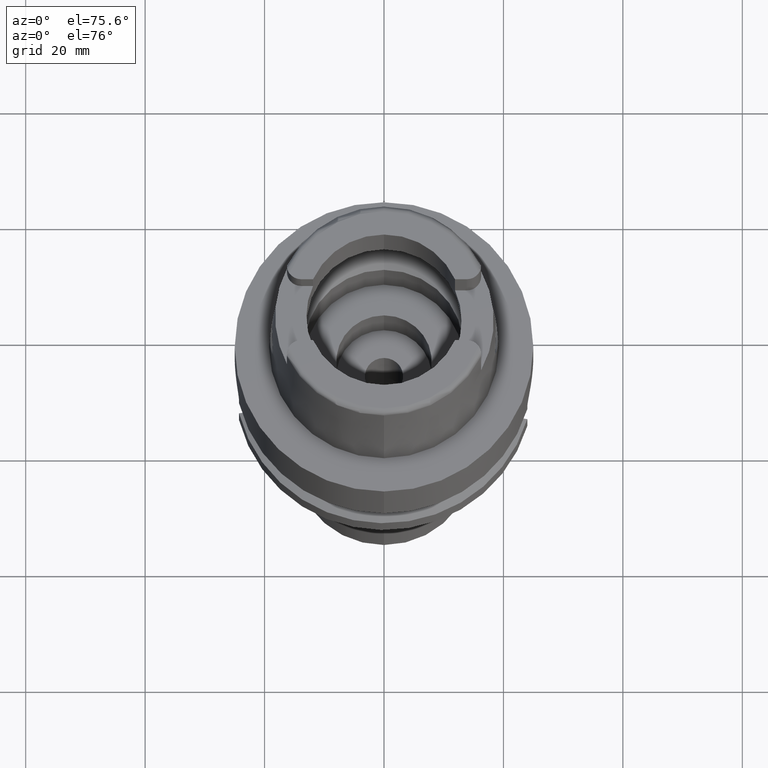
[diagram: clean part render]
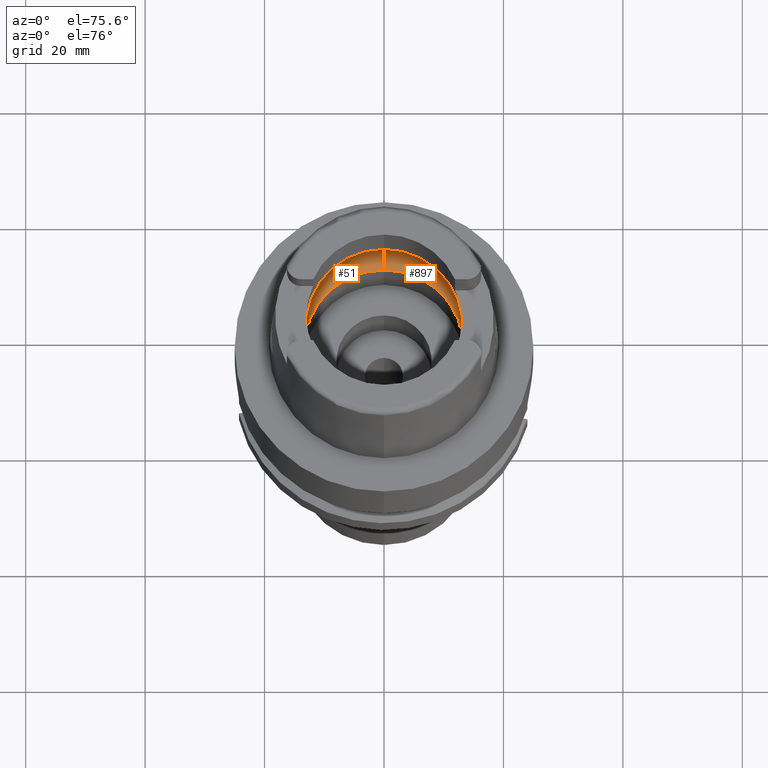
[diagram: same view with one multi-face feature highlighted, each face labeled with its STEP entity id]
A machine part, auxiliary view. The highlighted faces form ONE feature: a constant-radius fillet chain: 2 tangent blend faces with common blend radius 6 mm. The faces share edges in the B-rep.
Their STEP definitions:
[1] entity #897 (Torus):
#36 = ORIENTED_EDGE ( 'NONE', *, *, #2970, .F. ) ;
#290 = AXIS2_PLACEMENT_3D ( 'NONE', #2500, #4573, #1977 ) ;
#303 = CARTESIAN_POINT ( 'NONE',  ( 0.0000000000000000000, -13.29999999999999893, 0.04999999999997999794 ) ) ;
#313 = CIRCLE ( 'NONE', #1535, 16.00000000000000000 ) ;
#335 = CARTESIAN_POINT ( 'NONE',  ( 15.92748130313666266, -1.536287252994779751, 4.910241166276443359 ) ) ;
#595 = CARTESIAN_POINT ( 'NONE',  ( 0.0000000000000000000, 0.0000000000000000000, 0.04999999999997999794 ) ) ;
#610 = ORIENTED_EDGE ( 'NONE', *, *, #1563, .F. ) ;
#622 = DIRECTION ( 'NONE',  ( 0.0000000000000000000, 0.0000000000000000000, 1.000000000000000000 ) ) ;
#721 = CARTESIAN_POINT ( 'NONE',  ( 15.94481961884416599, -1.284363903411000596, 4.771085202065872721 ) ) ;
#742 = CARTESIAN_POINT ( 'NONE',  ( 0.0000000000000000000, 16.00000000000000000, 5.060987926546999915 ) ) ;
#870 = DIRECTION ( 'NONE',  ( 0.0000000000000000000, 0.5500000000000007105, -0.8351646544245028281 ) ) ;
#897 = ADVANCED_FACE ( 'NONE', ( #2250 ), #2442, .F. ) ;
#965 = DIRECTION ( 'NONE',  ( 0.0000000000000000000, 1.000000000000000000, 0.0000000000000000000 ) ) ;
#991 = DIRECTION ( 'NONE',  ( 0.0000000000000000000, 0.0000000000000000000, 1.000000000000000000 ) ) ;
#1132 = CARTESIAN_POINT ( 'NONE',  ( 15.96793737312083472, -0.6977532816171033714, 4.565769782590064274 ) ) ;
#1307 = ORIENTED_EDGE ( 'NONE', *, *, #4589, .T. ) ;
#1386 = AXIS2_PLACEMENT_3D ( 'NONE', #4032, #991, #965 ) ;
#1535 = AXIS2_PLACEMENT_3D ( 'NONE', #5390, #4439, #4089 ) ;
#1563 = EDGE_CURVE ( 'NONE', #4594, #4407, #5110, .T. ) ;
#1608 = CARTESIAN_POINT ( 'NONE',  ( 15.97371681168999835, 0.0000000000000000000, 4.500000000000000000 ) ) ;
#1665 = DIRECTION ( 'NONE',  ( 1.000000000000000000, 0.0000000000000000000, 0.0000000000000000000 ) ) ;
#1754 = VERTEX_POINT ( 'NONE', #4991 ) ;
#1841 = ORIENTED_EDGE ( 'NONE', *, *, #3858, .F. ) ;
#1977 = DIRECTION ( 'NONE',  ( 0.0000000000000000000, -0.5500000000000007105, -0.8351646544245028281 ) ) ;
#2149 = CIRCLE ( 'NONE', #3671, 5.999999999999993783 ) ;
#2250 = FACE_OUTER_BOUND ( 'NONE', #4171, .T. ) ;
#2281 = ORIENTED_EDGE ( 'NONE', *, *, #2534, .F. ) ;
#2290 = DIRECTION ( 'NONE',  ( 0.0000000000000000000, -1.000000000000000000, 0.0000000000000000000 ) ) ;
#2350 = AXIS2_PLACEMENT_3D ( 'NONE', #595, #622, #2290 ) ;
#2393 = CARTESIAN_POINT ( 'NONE',  ( 15.90436354886000103, -1.746774199932999982, 5.060987926546999915 ) ) ;
#2442 = TOROIDAL_SURFACE ( 'NONE', #1386, 10.00000000000000000, 6.000000000000000000 ) ;
#2500 = CARTESIAN_POINT ( 'NONE',  ( 0.0000000000000000000, -10.00000000000000000, 5.060987926546999915 ) ) ;
#2534 = EDGE_CURVE ( 'NONE', #4974, #1754, #3941, .T. ) ;
#2558 = DIRECTION ( 'NONE',  ( 0.0000000000000000000, 0.0000000000000000000, -1.000000000000000000 ) ) ;
#2613 = B_SPLINE_CURVE_WITH_KNOTS ( 'NONE', 3,
 ( #3669, #5359, #4053, #2879, #2905, #5025 ),
 .UNSPECIFIED., .F., .F.,
 ( 4, 2, 4 ),
 ( 0.0000000000000000000, 0.5000000000000000000, 1.000000000000000000 ),
 .UNSPECIFIED. ) ;
#2811 = EDGE_CURVE ( 'NONE', #4380, #4974, #2613, .T. ) ;
#2867 = ORIENTED_EDGE ( 'NONE', *, *, #2811, .F. ) ;
#2879 = CARTESIAN_POINT ( 'NONE',  ( 15.96793737312082406, 0.6977532815764533325, 4.565769782580398228 ) ) ;
#2905 = CARTESIAN_POINT ( 'NONE',  ( 15.97371681168999835, 0.3626031211644606955, 4.500000000000000888 ) ) ;
#2970 = EDGE_CURVE ( 'NONE', #4407, #3973, #2149, .T. ) ;
#3233 = CARTESIAN_POINT ( 'NONE',  ( 15.97371681168999835, 0.0000000000000000000, 4.500000000000000000 ) ) ;
#3403 = CARTESIAN_POINT ( 'NONE',  ( 0.0000000000000000000, 13.29999999999999893, 0.04999999999997999794 ) ) ;
#3669 = CARTESIAN_POINT ( 'NONE',  ( 15.90436354886000103, 1.746774199932999982, 5.060987926546999915 ) ) ;
#3671 = AXIS2_PLACEMENT_3D ( 'NONE', #5467, #1665, #870 ) ;
#3858 = EDGE_CURVE ( 'NONE', #3973, #4380, #313, .T. ) ;
#3870 = CARTESIAN_POINT ( 'NONE',  ( 0.0000000000000000000, 0.0000000000000000000, 5.060987926546999915 ) ) ;
#3941 = B_SPLINE_CURVE_WITH_KNOTS ( 'NONE', 3,
 ( #3233, #4932, #1132, #721, #335, #2393 ),
 .UNSPECIFIED., .F., .F.,
 ( 4, 2, 4 ),
 ( 0.0000000000000000000, 0.5000000000000000000, 1.000000000000000000 ),
 .UNSPECIFIED. ) ;
#3973 = VERTEX_POINT ( 'NONE', #742 ) ;
#4032 = CARTESIAN_POINT ( 'NONE',  ( 0.0000000000000000000, 0.0000000000000000000, 5.060987926546999915 ) ) ;
#4053 = CARTESIAN_POINT ( 'NONE',  ( 15.94481961884416954, 1.284363903373195281, 4.771085202048084284 ) ) ;
#4082 = CIRCLE ( 'NONE', #290, 5.999999999999993783 ) ;
#4089 = DIRECTION ( 'NONE',  ( 0.0000000000000000000, 1.000000000000000000, 0.0000000000000000000 ) ) ;
#4171 = EDGE_LOOP ( 'NONE', ( #2867, #1841, #36, #610, #1307, #5173, #2281 ) ) ;
#4350 = CARTESIAN_POINT ( 'NONE',  ( 15.90436354886000103, 1.746774199932999982, 5.060987926546999915 ) ) ;
#4379 = CIRCLE ( 'NONE', #5076, 16.00000000000000355 ) ;
#4380 = VERTEX_POINT ( 'NONE', #4350 ) ;
#4407 = VERTEX_POINT ( 'NONE', #3403 ) ;
#4439 = DIRECTION ( 'NONE',  ( 0.0000000000000000000, 0.0000000000000000000, -1.000000000000000000 ) ) ;
#4453 = EDGE_CURVE ( 'NONE', #1754, #4930, #4379, .T. ) ;
#4573 = DIRECTION ( 'NONE',  ( -1.000000000000000000, 0.0000000000000000000, 0.0000000000000000000 ) ) ;
#4589 = EDGE_CURVE ( 'NONE', #4594, #4930, #4082, .T. ) ;
#4594 = VERTEX_POINT ( 'NONE', #303 ) ;
#4930 = VERTEX_POINT ( 'NONE', #5361 ) ;
#4932 = CARTESIAN_POINT ( 'NONE',  ( 15.97371681169000190, -0.3626031211921638686, 4.500000000000000000 ) ) ;
#4974 = VERTEX_POINT ( 'NONE', #1608 ) ;
#4991 = CARTESIAN_POINT ( 'NONE',  ( 15.90436354886000103, -1.746774199932999982, 5.060987926546999915 ) ) ;
#5025 = CARTESIAN_POINT ( 'NONE',  ( 15.97371681168999835, 0.0000000000000000000, 4.500000000000000000 ) ) ;
#5076 = AXIS2_PLACEMENT_3D ( 'NONE', #3870, #2558, #5128 ) ;
#5110 = CIRCLE ( 'NONE', #2350, 13.29999999999999893 ) ;
#5128 = DIRECTION ( 'NONE',  ( 0.9940227218040297297, -0.1091733874958031730, 0.0000000000000000000 ) ) ;
#5173 = ORIENTED_EDGE ( 'NONE', *, *, #4453, .F. ) ;
#5359 = CARTESIAN_POINT ( 'NONE',  ( 15.92748130313666266, 1.536287252972255990, 4.910241166260312262 ) ) ;
#5361 = CARTESIAN_POINT ( 'NONE',  ( 0.0000000000000000000, -16.00000000000000000, 5.060987926546999915 ) ) ;
#5390 = CARTESIAN_POINT ( 'NONE',  ( 0.0000000000000000000, 0.0000000000000000000, 5.060987926546999915 ) ) ;
#5467 = CARTESIAN_POINT ( 'NONE',  ( 0.0000000000000000000, 10.00000000000000000, 5.060987926546999915 ) ) ;
[2] entity #51 (Torus):
#51 = ADVANCED_FACE ( 'NONE', ( #436 ), #868, .F. ) ;
#146 = AXIS2_PLACEMENT_3D ( 'NONE', #1683, #1164, #1270 ) ;
#224 = DIRECTION ( 'NONE',  ( 0.0000000000000000000, -1.000000000000000000, 0.0000000000000000000 ) ) ;
#246 = CARTESIAN_POINT ( 'NONE',  ( -15.90436354886000103, 1.746774199932999982, 5.060987926546999915 ) ) ;
#281 = CARTESIAN_POINT ( 'NONE',  ( -15.97371681168999835, -0.3626031211644242247, 4.499999999999999112 ) ) ;
#290 = AXIS2_PLACEMENT_3D ( 'NONE', #2500, #4573, #1977 ) ;
#303 = CARTESIAN_POINT ( 'NONE',  ( 0.0000000000000000000, -13.29999999999999893, 0.04999999999997999794 ) ) ;
#316 = CARTESIAN_POINT ( 'NONE',  ( -15.97371681168999835, 0.0000000000000000000, 4.500000000000000000 ) ) ;
#346 = CARTESIAN_POINT ( 'NONE',  ( 0.0000000000000000000, 0.0000000000000000000, 5.060987926546999915 ) ) ;
#350 = EDGE_CURVE ( 'NONE', #4407, #4594, #4408, .T. ) ;
#436 = FACE_OUTER_BOUND ( 'NONE', #4705, .T. ) ;
#556 = EDGE_CURVE ( 'NONE', #998, #2078, #3346, .T. ) ;
#572 = AXIS2_PLACEMENT_3D ( 'NONE', #2765, #1927, #224 ) ;
#700 = CARTESIAN_POINT ( 'NONE',  ( -15.90436354886000103, -1.746774199932999982, 5.060987926546999915 ) ) ;
#742 = CARTESIAN_POINT ( 'NONE',  ( 0.0000000000000000000, 16.00000000000000000, 5.060987926546999915 ) ) ;
#868 = TOROIDAL_SURFACE ( 'NONE', #1658, 10.00000000000000000, 6.000000000000000000 ) ;
#870 = DIRECTION ( 'NONE',  ( 0.0000000000000000000, 0.5500000000000007105, -0.8351646544245028281 ) ) ;
#871 = DIRECTION ( 'NONE',  ( 0.0000000000000000000, 0.0000000000000000000, 1.000000000000000000 ) ) ;
#908 = ORIENTED_EDGE ( 'NONE', *, *, #3356, .F. ) ;
#998 = VERTEX_POINT ( 'NONE', #1398 ) ;
#1098 = CIRCLE ( 'NONE', #572, 16.00000000000000000 ) ;
#1164 = DIRECTION ( 'NONE',  ( 0.0000000000000000000, 0.0000000000000000000, 1.000000000000000000 ) ) ;
#1203 = CARTESIAN_POINT ( 'NONE',  ( -15.92748130313666799, -1.536287252972227124, 4.910241166260291834 ) ) ;
#1270 = DIRECTION ( 'NONE',  ( 0.0000000000000000000, 1.000000000000000000, 0.0000000000000000000 ) ) ;
#1398 = CARTESIAN_POINT ( 'NONE',  ( -15.90436354886000103, -1.746774199932999982, 5.060987926546999915 ) ) ;
#1417 = ORIENTED_EDGE ( 'NONE', *, *, #4589, .F. ) ;
#1478 = ORIENTED_EDGE ( 'NONE', *, *, #2970, .T. ) ;
#1500 = EDGE_CURVE ( 'NONE', #3985, #3973, #2267, .T. ) ;
#1658 = AXIS2_PLACEMENT_3D ( 'NONE', #5026, #871, #3360 ) ;
#1665 = DIRECTION ( 'NONE',  ( 1.000000000000000000, 0.0000000000000000000, 0.0000000000000000000 ) ) ;
#1683 = CARTESIAN_POINT ( 'NONE',  ( 0.0000000000000000000, 0.0000000000000000000, 0.04999999999997999794 ) ) ;
#1744 = ORIENTED_EDGE ( 'NONE', *, *, #1500, .F. ) ;
#1927 = DIRECTION ( 'NONE',  ( 0.0000000000000000000, 0.0000000000000000000, -1.000000000000000000 ) ) ;
#1977 = DIRECTION ( 'NONE',  ( 0.0000000000000000000, -0.5500000000000007105, -0.8351646544245028281 ) ) ;
#1987 = CARTESIAN_POINT ( 'NONE',  ( -15.94481961884416599, 1.284363903331934509, 4.771085202028663375 ) ) ;
#2015 = DIRECTION ( 'NONE',  ( 0.0000000000000000000, 0.0000000000000000000, -1.000000000000000000 ) ) ;
#2078 = VERTEX_POINT ( 'NONE', #2163 ) ;
#2148 = B_SPLINE_CURVE_WITH_KNOTS ( 'NONE', 3,
 ( #316, #3240, #4914, #1987, #4530, #2800 ),
 .UNSPECIFIED., .F., .F.,
 ( 4, 2, 4 ),
 ( 0.0000000000000000000, 0.5000000000000000000, 1.000000000000000000 ),
 .UNSPECIFIED. ) ;
#2149 = CIRCLE ( 'NONE', #3671, 5.999999999999993783 ) ;
#2163 = CARTESIAN_POINT ( 'NONE',  ( -15.97371681168999835, 0.0000000000000000000, 4.500000000000000000 ) ) ;
#2267 = CIRCLE ( 'NONE', #4410, 16.00000000000000355 ) ;
#2306 = ORIENTED_EDGE ( 'NONE', *, *, #350, .F. ) ;
#2500 = CARTESIAN_POINT ( 'NONE',  ( 0.0000000000000000000, -10.00000000000000000, 5.060987926546999915 ) ) ;
#2517 = ORIENTED_EDGE ( 'NONE', *, *, #556, .F. ) ;
#2765 = CARTESIAN_POINT ( 'NONE',  ( 0.0000000000000000000, 0.0000000000000000000, 5.060987926546999915 ) ) ;
#2800 = CARTESIAN_POINT ( 'NONE',  ( -15.90436354886000103, 1.746774199932999982, 5.060987926546999915 ) ) ;
#2970 = EDGE_CURVE ( 'NONE', #4407, #3973, #2149, .T. ) ;
#3115 = EDGE_CURVE ( 'NONE', #2078, #3985, #2148, .T. ) ;
#3187 = ORIENTED_EDGE ( 'NONE', *, *, #3115, .F. ) ;
#3240 = CARTESIAN_POINT ( 'NONE',  ( -15.97371681168999835, 0.3626031211342209404, 4.500000000000000000 ) ) ;
#3346 = B_SPLINE_CURVE_WITH_KNOTS ( 'NONE', 3,
 ( #700, #1203, #4044, #4070, #281, #4473 ),
 .UNSPECIFIED., .F., .F.,
 ( 4, 2, 4 ),
 ( 0.0000000000000000000, 0.5000000000000000000, 1.000000000000000000 ),
 .UNSPECIFIED. ) ;
#3356 = EDGE_CURVE ( 'NONE', #4930, #998, #1098, .T. ) ;
#3360 = DIRECTION ( 'NONE',  ( 0.0000000000000000000, 1.000000000000000000, 0.0000000000000000000 ) ) ;
#3403 = CARTESIAN_POINT ( 'NONE',  ( 0.0000000000000000000, 13.29999999999999893, 0.04999999999997999794 ) ) ;
#3671 = AXIS2_PLACEMENT_3D ( 'NONE', #5467, #1665, #870 ) ;
#3717 = DIRECTION ( 'NONE',  ( -0.9940227218040297297, 0.1091733874958031730, 0.0000000000000000000 ) ) ;
#3973 = VERTEX_POINT ( 'NONE', #742 ) ;
#3985 = VERTEX_POINT ( 'NONE', #246 ) ;
#4044 = CARTESIAN_POINT ( 'NONE',  ( -15.94481961884416954, -1.284363903373151983, 4.771085202048062079 ) ) ;
#4070 = CARTESIAN_POINT ( 'NONE',  ( -15.96793737312083472, -0.6977532815764048157, 4.565769782580386682 ) ) ;
#4082 = CIRCLE ( 'NONE', #290, 5.999999999999993783 ) ;
#4407 = VERTEX_POINT ( 'NONE', #3403 ) ;
#4408 = CIRCLE ( 'NONE', #146, 13.29999999999999893 ) ;
#4410 = AXIS2_PLACEMENT_3D ( 'NONE', #346, #2015, #3717 ) ;
#4473 = CARTESIAN_POINT ( 'NONE',  ( -15.97371681168999835, 0.0000000000000000000, 4.500000000000000000 ) ) ;
#4530 = CARTESIAN_POINT ( 'NONE',  ( -15.92748130313666799, 1.536287252947671211, 4.910241166242705013 ) ) ;
#4573 = DIRECTION ( 'NONE',  ( -1.000000000000000000, 0.0000000000000000000, 0.0000000000000000000 ) ) ;
#4589 = EDGE_CURVE ( 'NONE', #4594, #4930, #4082, .T. ) ;
#4594 = VERTEX_POINT ( 'NONE', #303 ) ;
#4705 = EDGE_LOOP ( 'NONE', ( #908, #1417, #2306, #1478, #1744, #3187, #2517 ) ) ;
#4914 = CARTESIAN_POINT ( 'NONE',  ( -15.96793737312083827, 0.6977532815320883763, 4.565769782569849333 ) ) ;
#4930 = VERTEX_POINT ( 'NONE', #5361 ) ;
#5026 = CARTESIAN_POINT ( 'NONE',  ( 0.0000000000000000000, 0.0000000000000000000, 5.060987926546999915 ) ) ;
#5361 = CARTESIAN_POINT ( 'NONE',  ( 0.0000000000000000000, -16.00000000000000000, 5.060987926546999915 ) ) ;
#5467 = CARTESIAN_POINT ( 'NONE',  ( 0.0000000000000000000, 10.00000000000000000, 5.060987926546999915 ) ) ;